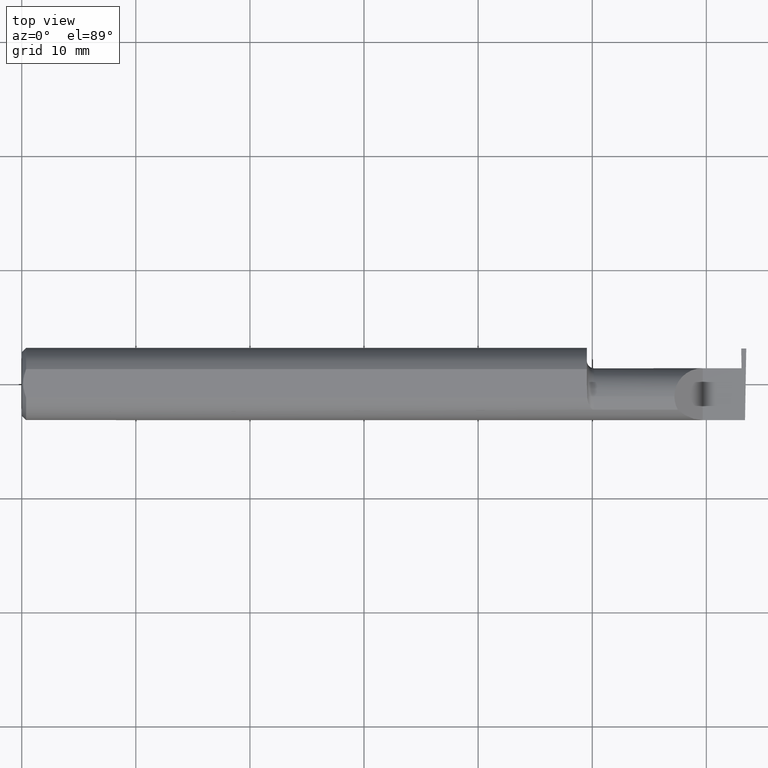
[diagram: clean part render]
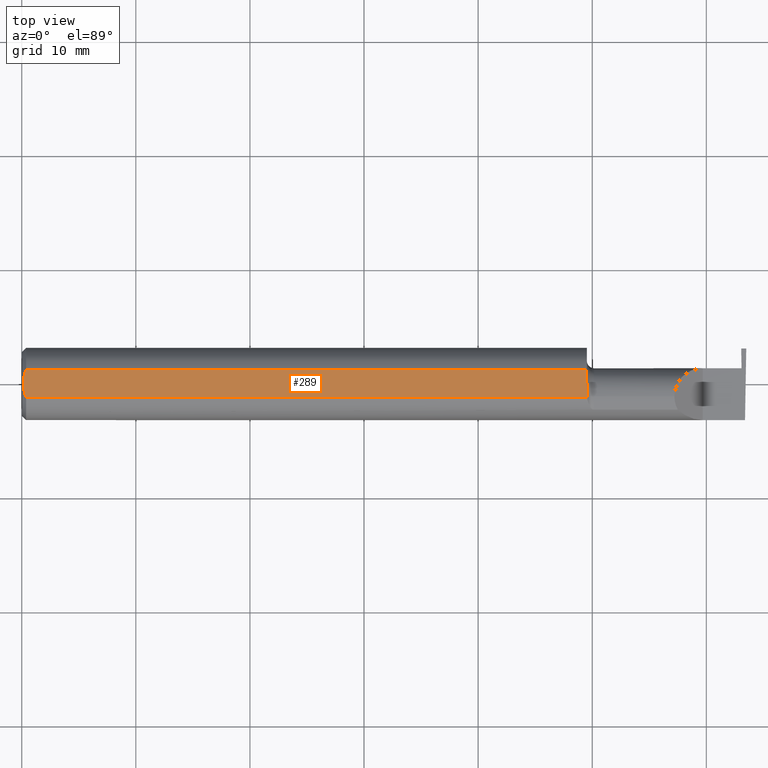
[diagram: same view with one face highlighted and labeled with its STEP entity id]
A machine part, top view. The second image highlights one B-rep face of the part: STEP entity #289.
In plain terms, the highlighted planar face has unit normal (0, -0, 1).
Its self-contained STEP definition (entity closure, byte-faithful):
#1 = CARTESIAN_POINT ( 'NONE',  ( 1.951365755776839572, -0.04385000000000001397, 0.1148500000000000076 ) ) ;
#6 = CARTESIAN_POINT ( 'NONE',  ( 1.950400391910593223, -0.01449986171080064855, 0.1148500000000000076 ) ) ;
#21 = VERTEX_POINT ( 'NONE', #766 ) ;
#30 = CARTESIAN_POINT ( 'NONE',  ( 0.005947935873631229539, 0.01679708999422689641, 0.1148500000000000076 ) ) ;
#32 = ORIENTED_EDGE ( 'NONE', *, *, #467, .T. ) ;
#35 = CARTESIAN_POINT ( 'NONE',  ( 0.004999999999999990563, 1.454187663965904829E-17, 0.1148500000000000076 ) ) ;
#45 = CARTESIAN_POINT ( 'NONE',  ( 1.951365755776839572, -0.03650543323727819395, 0.1148500000000000215 ) ) ;
#47 = VERTEX_POINT ( 'NONE', #593 ) ;
#49 = EDGE_CURVE ( 'NONE', #47, #408, #294, .T. ) ;
#59 = CARTESIAN_POINT ( 'NONE',  ( 1.951365755776839794, -0.04470142088163548549, 0.1148500000000000076 ) ) ;
#66 = ORIENTED_EDGE ( 'NONE', *, *, #49, .T. ) ;
#75 = AXIS2_PLACEMENT_3D ( 'NONE', #536, #236, #476 ) ;
#83 = CARTESIAN_POINT ( 'NONE',  ( 1.950000000000000178, 0.0001781444078671173391, 0.1148500000000000076 ) ) ;
#95 = CARTESIAN_POINT ( 'NONE',  ( 0.01193974418109659125, 0.04115525648180412555, 0.1148500000000000215 ) ) ;
#96 = ORIENTED_EDGE ( 'NONE', *, *, #670, .T. ) ;
#111 = VECTOR ( 'NONE', #444, 39.37007874015748143 ) ;
#112 = CARTESIAN_POINT ( 'NONE',  ( 1.951339737573316135, -0.04810771292170309965, 0.1148500000000000215 ) ) ;
#119 = ORIENTED_EDGE ( 'NONE', *, *, #181, .T. ) ;
#128 = B_SPLINE_CURVE_WITH_KNOTS ( 'NONE', 3,
 ( #654, #45, #492, #6, #302, #533 ),
 .UNSPECIFIED., .F., .F.,
 ( 4, 2, 4 ),
 ( 0.009485158816280052710, 0.01004274199597727374, 0.01060032517567449477 ),
 .UNSPECIFIED. ) ;
#145 = CARTESIAN_POINT ( 'NONE',  ( 0.01195732443765547617, -0.04120008761723503027, 0.1148500000000000076 ) ) ;
#146 = ORIENTED_EDGE ( 'NONE', *, *, #504, .T. ) ;
#181 = EDGE_CURVE ( 'NONE', #21, #584, #267, .T. ) ;
#207 = CARTESIAN_POINT ( 'NONE',  ( 0.01499999999999999944, -0.04895916665957456698, 0.1148500000000000076 ) ) ;
#215 = CARTESIAN_POINT ( 'NONE',  ( 1.950000000000000178, -0.1248500000000000165, 0.1148500000000000076 ) ) ;
#228 = PLANE ( 'NONE',  #75 ) ;
#236 = DIRECTION ( 'NONE',  ( 0.000000000000000000, -0.000000000000000000, 1.000000000000000000 ) ) ;
#249 = CARTESIAN_POINT ( 'NONE',  ( 0.01499999999999999944, -0.04895916665957456698, 0.1148500000000000076 ) ) ;
#267 = B_SPLINE_CURVE_WITH_KNOTS ( 'NONE', 3,
 ( #333, #112, #351, #733, #59, #1 ),
 .UNSPECIFIED., .F., .F.,
 ( 4, 2, 4 ),
 ( 0.009355882855483428281, 0.009420520835881740496, 0.009485158816280052710 ),
 .UNSPECIFIED. ) ;
#269 = CARTESIAN_POINT ( 'NONE',  ( 0.005932194444709715242, -0.01671525318617308672, 0.1148499999999999938 ) ) ;
#273 = CARTESIAN_POINT ( 'NONE',  ( 0.000000000000000000, -0.04895916665957456698, 0.1148500000000000076 ) ) ;
#275 = CARTESIAN_POINT ( 'NONE',  ( 0.009415874254822407391, -0.03313958207962815206, 0.1148500000000000076 ) ) ;
#289 = ADVANCED_FACE ( 'NONE', ( #609 ), #228, .T. ) ;
#294 = B_SPLINE_CURVE_WITH_KNOTS ( 'NONE', 3,
 ( #35, #759, #269, #275, #145, #207 ),
 .UNSPECIFIED., .F., .F.,
 ( 4, 2, 4 ),
 ( 0.003658435455108827606, 0.004289327297787134258, 0.004920219140465441343 ),
 .UNSPECIFIED. ) ;
#301 = VERTEX_POINT ( 'NONE', #780 ) ;
#302 = CARTESIAN_POINT ( 'NONE',  ( 1.949999999999999956, -0.007185469346089995955, 0.1148500000000000076 ) ) ;
#332 = CARTESIAN_POINT ( 'NONE',  ( 0.009410502401328750890, 0.03310661131402438395, 0.1148499999999999938 ) ) ;
#333 = CARTESIAN_POINT ( 'NONE',  ( 1.951326891871145719, -0.04895916665873453755, 0.1148500000000000076 ) ) ;
#351 = CARTESIAN_POINT ( 'NONE',  ( 1.951349474474288082, -0.04725615793095604145, 0.1148499999999999938 ) ) ;
#374 = ORIENTED_EDGE ( 'NONE', *, *, #581, .T. ) ;
#383 = DIRECTION ( 'NONE',  ( -1.000000000000000000, -0.000000000000000000, -0.000000000000000000 ) ) ;
#392 = DIRECTION ( 'NONE',  ( -0.000000000000000000, 1.000000000000000000, 0.000000000000000000 ) ) ;
#408 = VERTEX_POINT ( 'NONE', #249 ) ;
#440 = LINE ( 'NONE', #273, #111 ) ;
#444 = DIRECTION ( 'NONE',  ( 1.000000000000000000, 0.000000000000000000, 0.000000000000000000 ) ) ;
#449 = B_SPLINE_CURVE_WITH_KNOTS ( 'NONE', 3,
 ( #577, #95, #332, #30, #514, #771 ),
 .UNSPECIFIED., .F., .F.,
 ( 4, 2, 4 ),
 ( 0.002396733445051244405, 0.003027584450080036006, 0.003658435455108827606 ),
 .UNSPECIFIED. ) ;
#467 = EDGE_CURVE ( 'NONE', #500, #559, #529, .T. ) ;
#476 = DIRECTION ( 'NONE',  ( 1.000000000000000000, 0.000000000000000000, -0.000000000000000000 ) ) ;
#491 = EDGE_LOOP ( 'NONE', ( #146, #119, #96, #32, #521, #374, #66 ) ) ;
#492 = CARTESIAN_POINT ( 'NONE',  ( 1.951090261609496279, -0.02916889382056607125, 0.1148499999999999938 ) ) ;
#497 = VECTOR ( 'NONE', #383, 39.37007874015748143 ) ;
#500 = VERTEX_POINT ( 'NONE', #83 ) ;
#504 = EDGE_CURVE ( 'NONE', #408, #21, #440, .T. ) ;
#514 = CARTESIAN_POINT ( 'NONE',  ( 0.004999999999999962808, 0.008410227287019804779, 0.1148500000000000076 ) ) ;
#521 = ORIENTED_EDGE ( 'NONE', *, *, #558, .T. ) ;
#525 = CARTESIAN_POINT ( 'NONE',  ( 1.950000000000000178, 0.04895916665957496944, 0.1148500000000000076 ) ) ;
#529 = LINE ( 'NONE', #215, #676 ) ;
#533 = CARTESIAN_POINT ( 'NONE',  ( 1.950000000000000178, 0.0001781444078671173391, 0.1148500000000000076 ) ) ;
#536 = CARTESIAN_POINT ( 'NONE',  ( 2.500000000000000000, -0.1248500000000000165, 0.1148500000000000076 ) ) ;
#540 = CARTESIAN_POINT ( 'NONE',  ( 1.951365755776839572, -0.04385000000000001397, 0.1148500000000000076 ) ) ;
#558 = EDGE_CURVE ( 'NONE', #559, #301, #707, .T. ) ;
#559 = VERTEX_POINT ( 'NONE', #525 ) ;
#577 = CARTESIAN_POINT ( 'NONE',  ( 0.01499999999999987454, 0.04895916665957496944, 0.1148500000000000076 ) ) ;
#581 = EDGE_CURVE ( 'NONE', #301, #47, #449, .T. ) ;
#584 = VERTEX_POINT ( 'NONE', #540 ) ;
#593 = CARTESIAN_POINT ( 'NONE',  ( 0.004999999999999990563, 1.454187663965904829E-17, 0.1148500000000000076 ) ) ;
#609 = FACE_OUTER_BOUND ( 'NONE', #491, .T. ) ;
#654 = CARTESIAN_POINT ( 'NONE',  ( 1.951365755776839572, -0.04385000000000001397, 0.1148500000000000076 ) ) ;
#670 = EDGE_CURVE ( 'NONE', #584, #500, #128, .T. ) ;
#676 = VECTOR ( 'NONE', #392, 39.37007874015748143 ) ;
#697 = CARTESIAN_POINT ( 'NONE',  ( 0.000000000000000000, 0.04895916665957456698, 0.1148500000000000076 ) ) ;
#707 = LINE ( 'NONE', #697, #497 ) ;
#733 = CARTESIAN_POINT ( 'NONE',  ( 1.951362484150213072, -0.04555293709189148221, 0.1148500000000000076 ) ) ;
#759 = CARTESIAN_POINT ( 'NONE',  ( 0.004999999999999964542, -0.008410771716546819321, 0.1148500000000000215 ) ) ;
#766 = CARTESIAN_POINT ( 'NONE',  ( 1.951326891871145719, -0.04895916665873453755, 0.1148500000000000076 ) ) ;
#771 = CARTESIAN_POINT ( 'NONE',  ( 0.004999999999999990563, 1.454187663965904829E-17, 0.1148500000000000076 ) ) ;
#780 = CARTESIAN_POINT ( 'NONE',  ( 0.01499999999999987454, 0.04895916665957496944, 0.1148500000000000076 ) ) ;